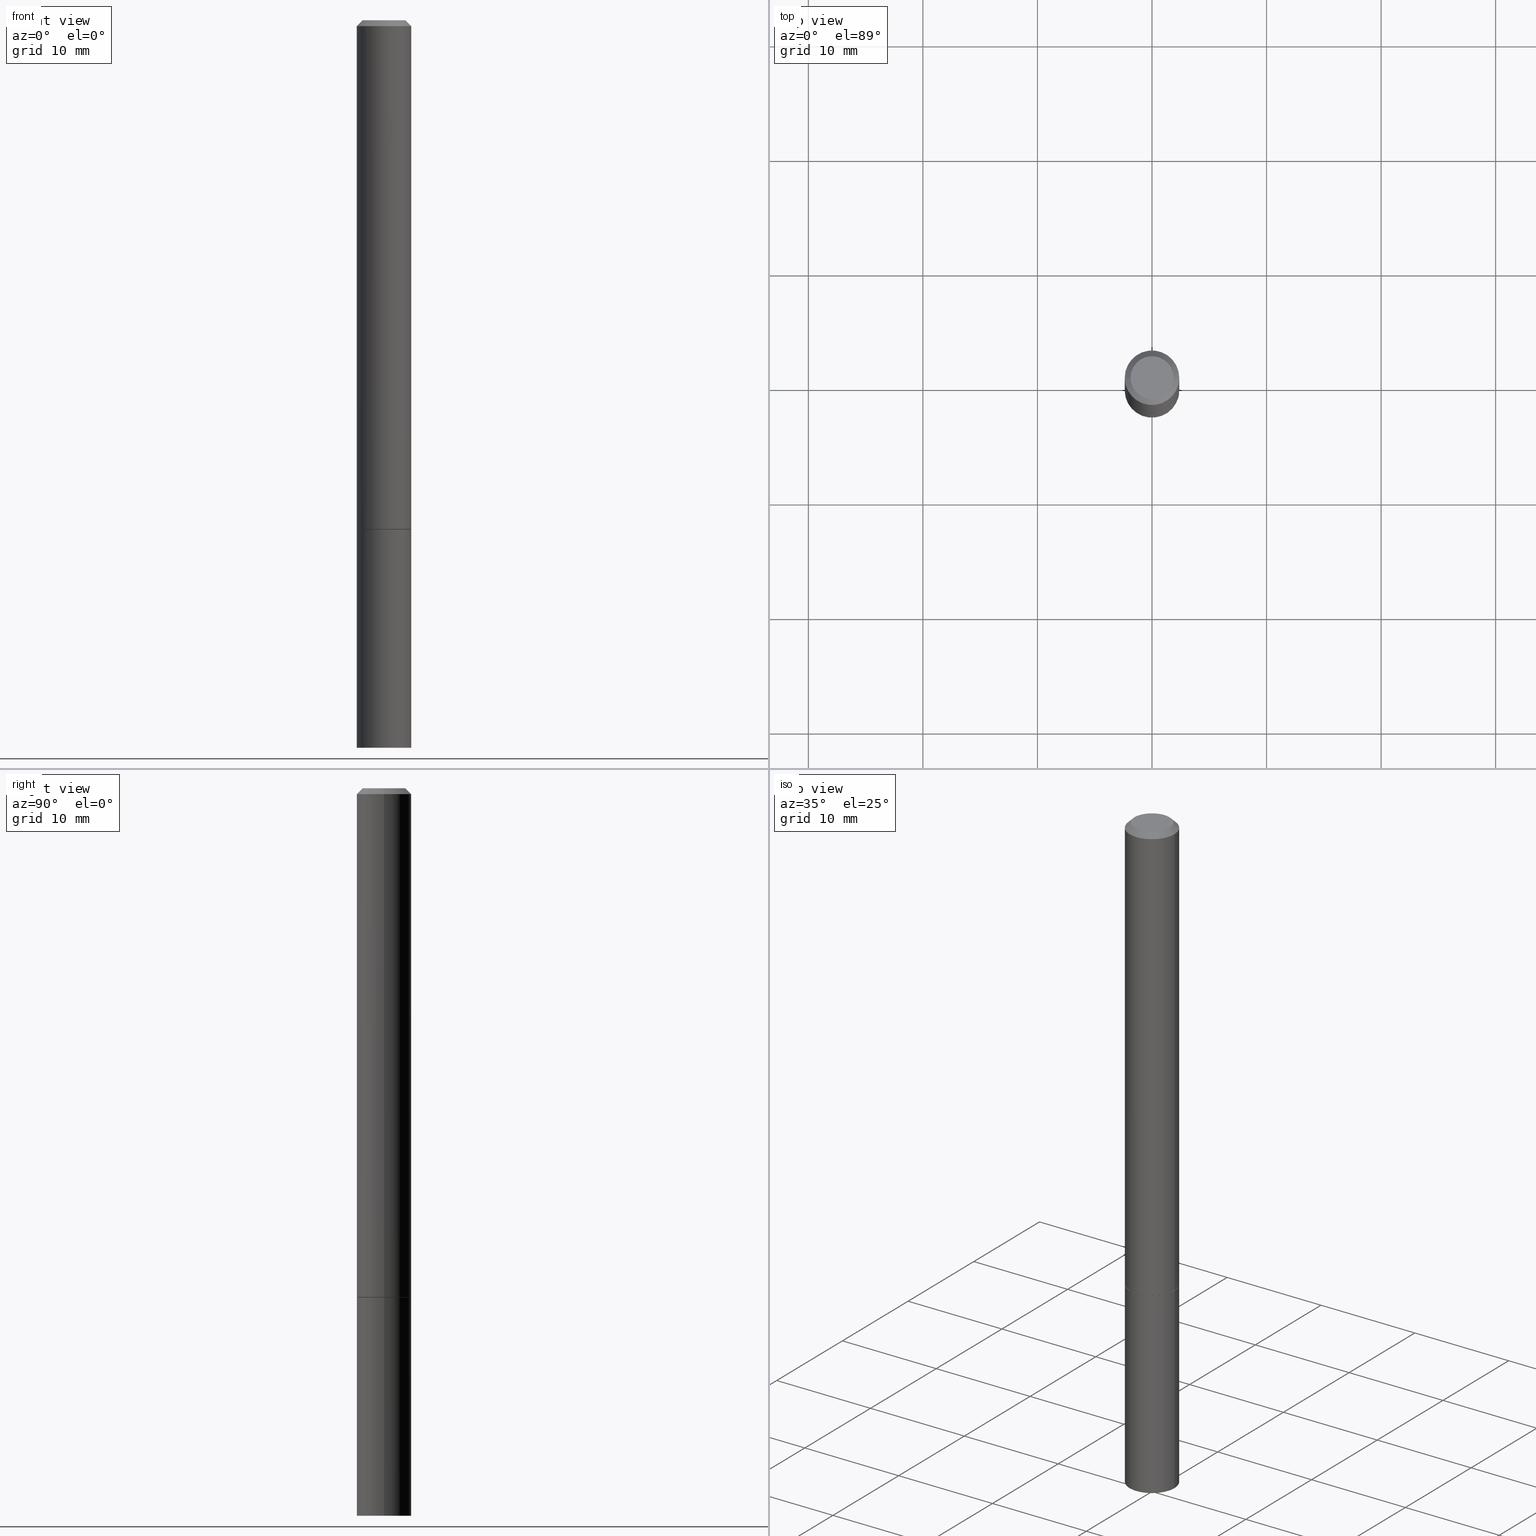
[diagram: canonical four-view strip — front | top / right | iso, engineering-drawing reading convention]
A machine part, canonical four-view strip (front | top / right | iso — engineering-drawing reading convention). The complete STEP part file that produces these views, byte-faithful:
ISO-10303-21;
HEADER;
FILE_DESCRIPTION (( 'STEP AP203' ),
    '1' );
FILE_NAME ('93325.STEP',
    '2024-03-01T05:21:11',
    ( '' ),
    ( '' ),
    'SwSTEP 2.0',
    'SolidWorks 2023',
    '' );
FILE_SCHEMA (( 'CONFIG_CONTROL_DESIGN' ));
ENDSEC;

DATA;
#1 = PERSON_AND_ORGANIZATION ( #239, #79 ) ;
#2 = DIRECTION ( 'NONE',  ( 1.000000000000000000, -6.982962677686266711E-15, 0.000000000000000000 ) ) ;
#3 = CARTESIAN_POINT ( 'NONE',  ( 0.09274999999999999911, -6.757762131330906950E-15, -1.750000000000000222 ) ) ;
#4 = EDGE_LOOP ( 'NONE', ( #261, #146 ) ) ;
#5 = CARTESIAN_POINT ( 'NONE',  ( 0.09374999999999979183, -7.130013140679426072E-16, -0.02000000000000002470 ) ) ;
#6 = PERSON_AND_ORGANIZATION_ROLE ( 'classification_officer' ) ;
#7 = CONICAL_SURFACE ( 'NONE', #48, 0.09374999999999979183, 0.7853981633974466137 ) ;
#8 = ADVANCED_FACE ( 'NONE', ( #86 ), #178, .T. ) ;
#9 = EDGE_LOOP ( 'NONE', ( #115, #60, #59, #255 ) ) ;
#10 = EDGE_LOOP ( 'NONE', ( #117, #42, #114, #340 ) ) ;
#11 = DIRECTION ( 'NONE',  ( -2.445468806185136597E-29, 3.491481338843145583E-15, 1.000000000000000000 ) ) ;
#12 = EDGE_LOOP ( 'NONE', ( #212, #142 ) ) ;
#13 = CARTESIAN_POINT ( 'NONE',  ( -0.09375000000000001388, -6.753264030266591277E-15, -2.500000000000000000 ) ) ;
#14 = CARTESIAN_POINT ( 'NONE',  ( 4.890937612370279289E-31, -6.982962677686299005E-17, -0.02000000000000002470 ) ) ;
#15 = CARTESIAN_POINT ( 'NONE',  ( 0.09374999999999979183, -7.130013140679426072E-16, -0.02000000000000002470 ) ) ;
#16 = EDGE_CURVE ( 'NONE', #162, #344, #65, .T. ) ;
#17 = COORDINATED_UNIVERSAL_TIME_OFFSET ( 5, 0, .BEHIND. ) ;
#18 = APPROVAL_STATUS ( 'not_yet_approved' ) ;
#19 = DIRECTION ( 'NONE',  ( -2.445468806185136877E-29, 3.491481338843145188E-15, 1.000000000000000000 ) ) ;
#20 = PLANE ( 'NONE',  #193 ) ;
#21 = DIRECTION ( 'NONE',  ( 0.7071067811865232589, -2.468850131082003836E-15, 0.7071067811865715536 ) ) ;
#22 = CC_DESIGN_PERSON_AND_ORGANIZATION_ASSIGNMENT ( #1, #104, ( #234 ) ) ;
#23 = ORIENTED_EDGE ( 'NONE', *, *, #307, .T. ) ;
#24 = DATE_AND_TIME ( #259, #136 ) ;
#25 = CYLINDRICAL_SURFACE ( 'NONE', #325, 0.09374999999999988898 ) ;
#26 = ORIENTED_EDGE ( 'NONE', *, *, #179, .F. ) ;
#27 = CIRCLE ( 'NONE', #331, 0.09375000000000001388 ) ;
#28 = PERSON_AND_ORGANIZATION_ROLE ( 'creator' ) ;
#29 = ORIENTED_EDGE ( 'NONE', *, *, #33, .F. ) ;
#30 = VERTEX_POINT ( 'NONE', #180 ) ;
#31 = AXIS2_PLACEMENT_3D ( 'NONE', #288, #147, #181 ) ;
#32 = CARTESIAN_POINT ( 'NONE',  ( 4.279570410823989044E-29, -6.110092342975505460E-15, -1.750000000000000222 ) ) ;
#33 = EDGE_CURVE ( 'NONE', #162, #96, #330, .T. ) ;
#34 = CARTESIAN_POINT ( 'NONE',  ( 0.09374999999999988898, -6.546527510330866166E-16, 4.571415727308684201E-30 ) ) ;
#35 = ORIENTED_EDGE ( 'NONE', *, *, #40, .F. ) ;
#36 = DIRECTION ( 'NONE',  ( 1.000000000000000000, -6.982962677686261189E-15, 0.000000000000000000 ) ) ;
#37 = VECTOR ( 'NONE', #360, 39.37007874015748854 ) ;
#38 = LOCAL_TIME ( 0, 21, 11.00000000000000000, #138 ) ;
#39 = DIRECTION ( 'NONE',  ( 1.000000000000000000, -6.982962677686273021E-15, 0.000000000000000000 ) ) ;
#40 = EDGE_CURVE ( 'NONE', #287, #252, #196, .T. ) ;
#41 = AXIS2_PLACEMENT_3D ( 'NONE', #164, #223, #277 ) ;
#42 = ORIENTED_EDGE ( 'NONE', *, *, #70, .F. ) ;
#43 = CARTESIAN_POINT ( 'NONE',  ( 5.149934974793609077E-16, 0.07374999999999982958, -2.574967487396813906E-16 ) ) ;
#44 = DATE_AND_TIME ( #351, #38 ) ;
#45 = FACE_OUTER_BOUND ( 'NONE', #121, .T. ) ;
#46 = DIRECTION ( 'NONE',  ( -2.445468806185136597E-29, 3.491481338843145583E-15, 1.000000000000000000 ) ) ;
#47 = EDGE_LOOP ( 'NONE', ( #244, #229 ) ) ;
#48 = AXIS2_PLACEMENT_3D ( 'NONE', #14, #272, #355 ) ;
#49 = CARTESIAN_POINT ( 'NONE',  ( 4.279570410823989044E-29, -6.110092342975505460E-15, -1.750000000000000222 ) ) ;
#50 = ORIENTED_EDGE ( 'NONE', *, *, #289, .T. ) ;
#51 = DIRECTION ( 'NONE',  ( -2.445468806185136597E-29, 3.491481338843145583E-15, 1.000000000000000000 ) ) ;
#52 = MECHANICAL_CONTEXT ( 'NONE', #92, 'mechanical' ) ;
#53 = FACE_OUTER_BOUND ( 'NONE', #148, .T. ) ;
#54 = AXIS2_PLACEMENT_3D ( 'NONE', #75, #51, #2 ) ;
#55 = LOCAL_TIME ( 0, 21, 11.00000000000000000, #195 ) ;
#56 = CC_DESIGN_PERSON_AND_ORGANIZATION_ASSIGNMENT ( #281, #28, ( #345 ) ) ;
#57 = COORDINATED_UNIVERSAL_TIME_OFFSET ( 5, 0, .BEHIND. ) ;
#58 = DIRECTION ( 'NONE',  ( 2.445468806185136597E-29, -3.491481338843145583E-15, -1.000000000000000000 ) ) ;
#59 = ORIENTED_EDGE ( 'NONE', *, *, #314, .F. ) ;
#60 = ORIENTED_EDGE ( 'NONE', *, *, #204, .T. ) ;
#61 = CARTESIAN_POINT ( 'NONE',  ( 4.279570410823989044E-29, -6.110092342975505460E-15, -1.750000000000000222 ) ) ;
#62 = APPROVAL ( #198, 'UNSPECIFIED' ) ;
#63 = AXIS2_PLACEMENT_3D ( 'NONE', #176, #173, #257 ) ;
#64 = ORIENTED_EDGE ( 'NONE', *, *, #260, .F. ) ;
#65 = LINE ( 'NONE', #5, #105 ) ;
#66 = CARTESIAN_POINT ( 'NONE',  ( 0.09274999999999999911, -6.757762131330906950E-15, -1.750000000000000222 ) ) ;
#67 = CARTESIAN_POINT ( 'NONE',  ( 4.890937612370279289E-31, -6.982962677686299005E-17, -0.02000000000000002470 ) ) ;
#68 = AXIS2_PLACEMENT_3D ( 'NONE', #177, #264, #258 ) ;
#69 = DIRECTION ( 'NONE',  ( 1.000000000000000000, -6.982962677686261189E-15, 0.000000000000000000 ) ) ;
#70 = EDGE_CURVE ( 'NONE', #96, #162, #134, .T. ) ;
#71 = FACE_OUTER_BOUND ( 'NONE', #207, .T. ) ;
#72 = CARTESIAN_POINT ( 'NONE',  ( -0.09274999999999999911, -5.451063955558012544E-15, -1.750000000000000222 ) ) ;
#73 = AXIS2_PLACEMENT_3D ( 'NONE', #341, #309, #169 ) ;
#74 = CIRCLE ( 'NONE', #338, 0.09375000000000001388 ) ;
#75 = CARTESIAN_POINT ( 'NONE',  ( 4.890937612370279289E-31, -6.982962677686299005E-17, -0.02000000000000002470 ) ) ;
#76 = DIRECTION ( 'NONE',  ( -2.445468806185136597E-29, 3.491481338843145583E-15, 1.000000000000000000 ) ) ;
#77 = ORIENTED_EDGE ( 'NONE', *, *, #307, .F. ) ;
#78 = DIRECTION ( 'NONE',  ( -1.000000000000000000, 6.982962677686265922E-15, -4.876176775795935793E-29 ) ) ;
#79 = ORGANIZATION ( 'UNSPECIFIED', 'UNSPECIFIED', '' ) ;
#80 = COORDINATED_UNIVERSAL_TIME_OFFSET ( 5, 0, .BEHIND. ) ;
#81 = DATE_AND_TIME ( #137, #55 ) ;
#82 = PERSON_AND_ORGANIZATION ( #239, #79 ) ;
#83 = CARTESIAN_POINT ( 'NONE',  ( -0.09375000000000001388, -2.422081429431664218E-15, -1.749000000000000110 ) ) ;
#84 = EDGE_LOOP ( 'NONE', ( #300, #23, #232, #205 ) ) ;
#85 = ADVANCED_FACE ( 'NONE', ( #268 ), #98, .F. ) ;
#86 = FACE_OUTER_BOUND ( 'NONE', #199, .T. ) ;
#87 = LOCAL_TIME ( 0, 21, 11.00000000000000000, #57 ) ;
#88 = ORIENTED_EDGE ( 'NONE', *, *, #246, .F. ) ;
#89 = MANIFOLD_SOLID_BREP ( 'Body-Move/Copy2[2]', #270 ) ;
#90 = VERTEX_POINT ( 'NONE', #66 ) ;
#91 = DIRECTION ( 'NONE',  ( -2.445468806185136597E-29, 3.491481338843145583E-15, 1.000000000000000000 ) ) ;
#92 = APPLICATION_CONTEXT ( 'configuration controlled 3d designs of mechanical parts and assemblies' ) ;
#93 = AXIS2_PLACEMENT_3D ( 'NONE', #349, #352, #140 ) ;
#94 = AXIS2_PLACEMENT_3D ( 'NONE', #157, #364, #39 ) ;
#95 = CARTESIAN_POINT ( 'NONE',  ( 0.000000000000000000, 0.000000000000000000, 0.000000000000000000 ) ) ;
#96 = VERTEX_POINT ( 'NONE', #296 ) ;
#97 = ADVANCED_FACE ( 'NONE', ( #71 ), #7, .T. ) ;
#98 = PLANE ( 'NONE',  #99 ) ;
#99 = AXIS2_PLACEMENT_3D ( 'NONE', #43, #216, #156 ) ;
#100 = CONICAL_SURFACE ( 'NONE', #357, 0.09374999999999979183, 0.7853981633974466137 ) ;
#101 = VERTEX_POINT ( 'NONE', #237 ) ;
#102 = DIRECTION ( 'NONE',  ( 1.000000000000000000, -6.982962677686265922E-15, 4.876176775795935793E-29 ) ) ;
#103 = EDGE_CURVE ( 'NONE', #322, #303, #159, .T. ) ;
#104 = PERSON_AND_ORGANIZATION_ROLE ( 'design_supplier' ) ;
#105 = VECTOR ( 'NONE', #112, 39.37007874015748854 ) ;
#106 = AXIS2_PLACEMENT_3D ( 'NONE', #143, #149, #36 ) ;
#107 = APPROVAL_DATE_TIME ( #81, #62 ) ;
#108 = CARTESIAN_POINT ( 'NONE',  ( 4.279570410823989044E-29, -6.110092342975505460E-15, -1.750000000000000222 ) ) ;
#109 = ADVANCED_FACE ( 'NONE', ( #132 ), #313, .T. ) ;
#110 = DIRECTION ( 'NONE',  ( -2.445468806185136597E-29, 3.491481338843145583E-15, 1.000000000000000000 ) ) ;
#111 = CALENDAR_DATE ( 2024, 1, 3 ) ;
#112 = DIRECTION ( 'NONE',  ( 0.7071067811865462405, -7.319954787623251312E-15, -0.7071067811865486830 ) ) ;
#113 = DIRECTION ( 'NONE',  ( -1.000000000000000000, 6.982962677686266711E-15, 0.000000000000000000 ) ) ;
#114 = ORIENTED_EDGE ( 'NONE', *, *, #260, .T. ) ;
#115 = ORIENTED_EDGE ( 'NONE', *, *, #328, .T. ) ;
#116 = DIRECTION ( 'NONE',  ( 1.000000000000000000, -6.982962677686273021E-15, 0.000000000000000000 ) ) ;
#117 = ORIENTED_EDGE ( 'NONE', *, *, #16, .F. ) ;
#118 = DIRECTION ( 'NONE',  ( 1.000000000000000000, -6.982962677686265922E-15, 4.876176775795935793E-29 ) ) ;
#119 = CIRCLE ( 'NONE', #54, 0.09374999999999979183 ) ;
#120 = CONICAL_SURFACE ( 'NONE', #31, 0.09274999999999999911, 0.7853981633974141952 ) ;
#121 = EDGE_LOOP ( 'NONE', ( #35, #192, #174, #77 ) ) ;
#122 = FACE_OUTER_BOUND ( 'NONE', #131, .T. ) ;
#123 = LINE ( 'NONE', #275, #283 ) ;
#124 = CC_DESIGN_PERSON_AND_ORGANIZATION_ASSIGNMENT ( #358, #172, ( #221 ) ) ;
#125 = APPROVAL_PERSON_ORGANIZATION ( #186, #152, #301 ) ;
#126 = CC_DESIGN_DATE_AND_TIME_ASSIGNMENT ( #141, #220, ( #299 ) ) ;
#127 = DATE_AND_TIME ( #334, #250 ) ;
#128 = PERSON_AND_ORGANIZATION ( #239, #79 ) ;
#129 = DIRECTION ( 'NONE',  ( -2.438088387897960049E-29, 3.491481338843145188E-15, 1.000000000000000000 ) ) ;
#130 = AXIS2_PLACEMENT_3D ( 'NONE', #306, #273, #78 ) ;
#131 = EDGE_LOOP ( 'NONE', ( #154, #235, #170, #188 ) ) ;
#132 = FACE_OUTER_BOUND ( 'NONE', #9, .T. ) ;
#133 = PLANE ( 'NONE',  #130 ) ;
#134 = CIRCLE ( 'NONE', #214, 0.07374999999999982958 ) ;
#135 = ADVANCED_FACE ( 'NONE', ( #311 ), #187, .F. ) ;
#136 = LOCAL_TIME ( 0, 21, 11.00000000000000000, #80 ) ;
#137 = CALENDAR_DATE ( 2024, 1, 3 ) ;
#138 = COORDINATED_UNIVERSAL_TIME_OFFSET ( 5, 0, .BEHIND. ) ;
#139 = DIRECTION ( 'NONE',  ( 1.000000000000000000, -6.982962677686261189E-15, 0.000000000000000000 ) ) ;
#140 = DIRECTION ( 'NONE',  ( 1.000000000000000000, -6.982962677686265922E-15, 4.876176775795935793E-29 ) ) ;
#141 = DATE_AND_TIME ( #111, #87 ) ;
#142 = ORIENTED_EDGE ( 'NONE', *, *, #298, .F. ) ;
#143 = CARTESIAN_POINT ( 'NONE',  ( 4.277124942017804562E-29, -6.106600861636661664E-15, -1.749000000000000110 ) ) ;
#144 = CIRCLE ( 'NONE', #215, 0.09274999999999999911 ) ;
#145 = APPROVAL_ROLE ( '' ) ;
#146 = ORIENTED_EDGE ( 'NONE', *, *, #179, .T. ) ;
#147 = DIRECTION ( 'NONE',  ( -2.445468806185136597E-29, 3.491481338843145583E-15, 1.000000000000000000 ) ) ;
#148 = EDGE_LOOP ( 'NONE', ( #88, #293 ) ) ;
#149 = DIRECTION ( 'NONE',  ( -2.445468806185136597E-29, 3.491481338843145583E-15, 1.000000000000000000 ) ) ;
#150 = APPROVAL_PERSON_ORGANIZATION ( #228, #190, #145 ) ;
#151 = DIRECTION ( 'NONE',  ( 1.000000000000000000, -6.982962677686266711E-15, 4.876176775795935793E-29 ) ) ;
#152 = APPROVAL ( #18, 'UNSPECIFIED' ) ;
#153 = AXIS2_PLACEMENT_3D ( 'NONE', #202, #11, #200 ) ;
#154 = ORIENTED_EDGE ( 'NONE', *, *, #246, .T. ) ;
#155 = DATE_TIME_ROLE ( 'creation_date' ) ;
#156 = DIRECTION ( 'NONE',  ( -1.000000000000000000, 6.982962677686265922E-15, -4.876176775795935793E-29 ) ) ;
#157 = CARTESIAN_POINT ( 'NONE',  ( 4.279570410823989044E-29, -6.110092342975505460E-15, -1.750000000000000222 ) ) ;
#158 = EDGE_CURVE ( 'NONE', #101, #344, #119, .T. ) ;
#159 = LINE ( 'NONE', #249, #348 ) ;
#160 = CIRCLE ( 'NONE', #106, 0.09375000000000001388 ) ;
#161 = DESIGN_CONTEXT ( 'detailed design', #251, 'design' ) ;
#162 = VERTEX_POINT ( 'NONE', #217 ) ;
#163 = ADVANCED_BREP_SHAPE_REPRESENTATION ( '93325', ( #335, #89, #41 ), #333 ) ;
#164 = CARTESIAN_POINT ( 'NONE',  ( 0.000000000000000000, 0.000000000000000000, 0.000000000000000000 ) ) ;
#165 = PRODUCT_DEFINITION_SHAPE ( 'NONE', 'NONE',  #345 ) ;
#166 = CARTESIAN_POINT ( 'NONE',  ( 4.279570410823989044E-29, -6.110092342975505460E-15, -1.750000000000000222 ) ) ;
#167 = EDGE_CURVE ( 'NONE', #90, #30, #282, .T. ) ;
#168 = APPROVAL_DATE_TIME ( #24, #190 ) ;
#169 = DIRECTION ( 'NONE',  ( -1.000000000000000000, 6.982962677686265922E-15, -4.876176775795935793E-29 ) ) ;
#170 = ORIENTED_EDGE ( 'NONE', *, *, #197, .F. ) ;
#171 = VECTOR ( 'NONE', #236, 39.37007874015748143 ) ;
#172 = PERSON_AND_ORGANIZATION_ROLE ( 'design_owner' ) ;
#173 = DIRECTION ( 'NONE',  ( -2.445468806185136597E-29, 3.491481338843145583E-15, 1.000000000000000000 ) ) ;
#174 = ORIENTED_EDGE ( 'NONE', *, *, #167, .T. ) ;
#175 = ADVANCED_FACE ( 'NONE', ( #245 ), #20, .F. ) ;
#176 = CARTESIAN_POINT ( 'NONE',  ( 6.113672015462842613E-29, -8.728703347107864943E-15, -2.500000000000000000 ) ) ;
#177 = CARTESIAN_POINT ( 'NONE',  ( 4.890937612370279289E-31, -6.982962677686299005E-17, -0.02000000000000002470 ) ) ;
#178 = CYLINDRICAL_SURFACE ( 'NONE', #93, 0.09375000000000001388 ) ;
#179 = EDGE_CURVE ( 'NONE', #303, #231, #361, .T. ) ;
#180 = CARTESIAN_POINT ( 'NONE',  ( 0.09375000000000001388, -6.761253612669749168E-15, -1.749000000000000110 ) ) ;
#181 = DIRECTION ( 'NONE',  ( 1.000000000000000000, -6.982962677686273021E-15, 0.000000000000000000 ) ) ;
#182 =( CONVERSION_BASED_UNIT ( 'INCH', #292 ) LENGTH_UNIT ( ) NAMED_UNIT ( #321 ) );
#183 = AXIS2_PLACEMENT_3D ( 'NONE', #323, #91, #118 ) ;
#184 = APPROVAL_PERSON_ORGANIZATION ( #315, #62, #320 ) ;
#185 = ADVANCED_FACE ( 'NONE', ( #53 ), #133, .T. ) ;
#186 = PERSON_AND_ORGANIZATION ( #239, #79 ) ;
#187 = PLANE ( 'NONE',  #73 ) ;
#188 = ORIENTED_EDGE ( 'NONE', *, *, #254, .F. ) ;
#189 = CARTESIAN_POINT ( 'NONE',  ( 0.000000000000000000, 0.000000000000000000, 0.000000000000000000 ) ) ;
#190 = APPROVAL ( #278, 'UNSPECIFIED' ) ;
#191 = DIRECTION ( 'NONE',  ( -2.445468806185136877E-29, 3.491481338843145188E-15, 1.000000000000000000 ) ) ;
#192 = ORIENTED_EDGE ( 'NONE', *, *, #298, .T. ) ;
#193 = AXIS2_PLACEMENT_3D ( 'NONE', #49, #129, #102 ) ;
#194 = AXIS2_PLACEMENT_3D ( 'NONE', #108, #218, #336 ) ;
#195 = COORDINATED_UNIVERSAL_TIME_OFFSET ( 5, 0, .BEHIND. ) ;
#196 = LINE ( 'NONE', #72, #37 ) ;
#197 = EDGE_CURVE ( 'NONE', #231, #303, #27, .T. ) ;
#198 = APPROVAL_STATUS ( 'not_yet_approved' ) ;
#199 = EDGE_LOOP ( 'NONE', ( #365, #50, #324, #26 ) ) ;
#200 = DIRECTION ( 'NONE',  ( 1.000000000000000000, -6.982962677686272233E-15, 0.000000000000000000 ) ) ;
#201 = ORIENTED_EDGE ( 'NONE', *, *, #363, .T. ) ;
#202 = CARTESIAN_POINT ( 'NONE',  ( 6.113672015462842613E-29, -8.728703347107864943E-15, -2.500000000000000000 ) ) ;
#203 = CONICAL_SURFACE ( 'NONE', #94, 0.09274999999999999911, 0.7853981633974141952 ) ;
#204 = EDGE_CURVE ( 'NONE', #252, #101, #247, .T. ) ;
#205 = ORIENTED_EDGE ( 'NONE', *, *, #158, .F. ) ;
#206 = DIRECTION ( 'NONE',  ( -2.445468806185136597E-29, 3.491481338843145583E-15, 1.000000000000000000 ) ) ;
#207 = EDGE_LOOP ( 'NONE', ( #29, #326, #347, #64 ) ) ;
#208 = DIRECTION ( 'NONE',  ( -2.445468806185136597E-29, 3.491481338843145583E-15, 1.000000000000000000 ) ) ;
#209 = CYLINDRICAL_SURFACE ( 'NONE', #183, 0.09375000000000001388 ) ;
#210 = AXIS2_PLACEMENT_3D ( 'NONE', #32, #230, #116 ) ;
#211 = DIRECTION ( 'NONE',  ( -2.445468806185136597E-29, 3.491481338843145583E-15, 1.000000000000000000 ) ) ;
#212 = ORIENTED_EDGE ( 'NONE', *, *, #363, .F. ) ;
#213 = DIRECTION ( 'NONE',  ( -2.445468806185136877E-29, 3.491481338843145188E-15, 1.000000000000000000 ) ) ;
#214 = AXIS2_PLACEMENT_3D ( 'NONE', #95, #211, #151 ) ;
#215 = AXIS2_PLACEMENT_3D ( 'NONE', #61, #208, #350 ) ;
#216 = DIRECTION ( 'NONE',  ( 2.438088387897960049E-29, -3.491481338843145188E-15, -1.000000000000000000 ) ) ;
#217 = CARTESIAN_POINT ( 'NONE',  ( 0.07374999999999982958, -6.094815207017959226E-16, 3.931526600461596647E-30 ) ) ;
#218 = DIRECTION ( 'NONE',  ( -2.445468806185136597E-29, 3.491481338843145583E-15, 1.000000000000000000 ) ) ;
#219 = ADVANCED_FACE ( 'NONE', ( #253 ), #25, .T. ) ;
#220 = DATE_TIME_ROLE ( 'classification_date' ) ;
#221 = PRODUCT ( '93325', '93325', '', ( #52 ) ) ;
#222 = CARTESIAN_POINT ( 'NONE',  ( 0.000000000000000000, 0.000000000000000000, 0.000000000000000000 ) ) ;
#223 = DIRECTION ( 'NONE',  ( 0.000000000000000000, 0.000000000000000000, 1.000000000000000000 ) ) ;
#224 = SHAPE_DEFINITION_REPRESENTATION ( #165, #163 ) ;
#225 = CARTESIAN_POINT ( 'NONE',  ( 0.000000000000000000, 0.000000000000000000, 0.000000000000000000 ) ) ;
#226 = CLOSED_SHELL ( 'NONE', ( #267, #185, #135, #8 ) ) ;
#227 = VECTOR ( 'NONE', #346, 39.37007874015748854 ) ;
#228 = PERSON_AND_ORGANIZATION ( #239, #79 ) ;
#229 = ORIENTED_EDGE ( 'NONE', *, *, #33, .T. ) ;
#230 = DIRECTION ( 'NONE',  ( -2.445468806185136597E-29, 3.491481338843145583E-15, 1.000000000000000000 ) ) ;
#231 = VERTEX_POINT ( 'NONE', #304 ) ;
#232 = ORIENTED_EDGE ( 'NONE', *, *, #356, .T. ) ;
#233 = CARTESIAN_POINT ( 'NONE',  ( -0.09274999999999999911, -5.445765501209790142E-15, -1.750000000000000222 ) ) ;
#234 = PRODUCT_DEFINITION_FORMATION_WITH_SPECIFIED_SOURCE ( 'ANY', '', #221, .NOT_KNOWN. ) ;
#235 = ORIENTED_EDGE ( 'NONE', *, *, #103, .T. ) ;
#236 = DIRECTION ( 'NONE',  ( -2.445468806185136877E-29, 3.491481338843145188E-15, 1.000000000000000000 ) ) ;
#237 = CARTESIAN_POINT ( 'NONE',  ( -0.09374999999999979183, 5.848231242562231212E-16, -0.02000000000000002470 ) ) ;
#238 = ADVANCED_FACE ( 'NONE', ( #45 ), #203, .T. ) ;
#239 = PERSON ( 'UNSPECIFIED', 'UNSPECIFIED', 'UNSPECIFIED', ('UNSPECIFIED'), ('UNSPECIFIED'), ('UNSPECIFIED') ) ;
#240 = CIRCLE ( 'NONE', #63, 0.09375000000000001388 ) ;
#241 = ADVANCED_FACE ( 'NONE', ( #269 ), #100, .T. ) ;
#242 = APPROVAL_DATE_TIME ( #127, #152 ) ;
#243 = DIRECTION ( 'NONE',  ( 1.000000000000000000, -6.982962677686265133E-15, 4.876176775795935793E-29 ) ) ;
#244 = ORIENTED_EDGE ( 'NONE', *, *, #70, .T. ) ;
#245 = FACE_OUTER_BOUND ( 'NONE', #12, .T. ) ;
#246 = EDGE_CURVE ( 'NONE', #290, #322, #240, .T. ) ;
#247 = LINE ( 'NONE', #279, #342 ) ;
#248 = APPLICATION_PROTOCOL_DEFINITION ( 'international standard', 'config_control_design', 1994, #92 ) ;
#249 = CARTESIAN_POINT ( 'NONE',  ( -0.09375000000000001388, 6.661338147750940229E-16, -4.611501647113973995E-30 ) ) ;
#250 = LOCAL_TIME ( 0, 21, 11.00000000000000000, #17 ) ;
#251 = APPLICATION_CONTEXT ( 'configuration controlled 3d designs of mechanical parts and assemblies' ) ;
#252 = VERTEX_POINT ( 'NONE', #83 ) ;
#253 = FACE_OUTER_BOUND ( 'NONE', #84, .T. ) ;
#254 = EDGE_CURVE ( 'NONE', #290, #231, #123, .T. ) ;
#255 = ORIENTED_EDGE ( 'NONE', *, *, #356, .F. ) ;
#256 = SECURITY_CLASSIFICATION_LEVEL ( 'unclassified' ) ;
#257 = DIRECTION ( 'NONE',  ( 1.000000000000000000, -6.982962677686272233E-15, 0.000000000000000000 ) ) ;
#258 = DIRECTION ( 'NONE',  ( 1.000000000000000000, -6.982962677686266711E-15, 0.000000000000000000 ) ) ;
#259 = CALENDAR_DATE ( 2024, 1, 3 ) ;
#260 = EDGE_CURVE ( 'NONE', #96, #101, #337, .T. ) ;
#261 = ORIENTED_EDGE ( 'NONE', *, *, #197, .T. ) ;
#262 = ORIENTED_EDGE ( 'NONE', *, *, #40, .T. ) ;
#263 = CARTESIAN_POINT ( 'NONE',  ( -0.09375000000000001388, -6.753264030266591277E-15, -1.750000000000000222 ) ) ;
#264 = DIRECTION ( 'NONE',  ( -2.445468806185136597E-29, 3.491481338843145583E-15, 1.000000000000000000 ) ) ;
#265 = CC_DESIGN_APPROVAL ( #62, ( #299 ) ) ;
#266 =( NAMED_UNIT ( * ) SI_UNIT ( $, .STERADIAN. ) SOLID_ANGLE_UNIT ( ) );
#267 = ADVANCED_FACE ( 'NONE', ( #122 ), #209, .T. ) ;
#268 = FACE_OUTER_BOUND ( 'NONE', #47, .T. ) ;
#269 = FACE_OUTER_BOUND ( 'NONE', #10, .T. ) ;
#270 = CLOSED_SHELL ( 'NONE', ( #332, #109, #97, #241, #219, #238, #175, #85 ) ) ;
#271 = CIRCLE ( 'NONE', #68, 0.09374999999999979183 ) ;
#272 = DIRECTION ( 'NONE',  ( 2.445468806185136597E-29, -3.491481338843145583E-15, -1.000000000000000000 ) ) ;
#273 = DIRECTION ( 'NONE',  ( 2.438088387897960049E-29, -3.491481338843145188E-15, -1.000000000000000000 ) ) ;
#274 = CIRCLE ( 'NONE', #210, 0.09274999999999999911 ) ;
#275 = CARTESIAN_POINT ( 'NONE',  ( 0.09375000000000001388, -6.546527510330875041E-16, 4.571415727308690506E-30 ) ) ;
#276 = CC_DESIGN_DATE_AND_TIME_ASSIGNMENT ( #44, #155, ( #345 ) ) ;
#277 = DIRECTION ( 'NONE',  ( 1.000000000000000000, 0.000000000000000000, 0.000000000000000000 ) ) ;
#278 = APPROVAL_STATUS ( 'not_yet_approved' ) ;
#279 = CARTESIAN_POINT ( 'NONE',  ( -0.09374999999999988898, 6.661338147750931354E-16, -4.611501647113968390E-30 ) ) ;
#280 = AXIS2_PLACEMENT_3D ( 'NONE', #222, #76, #339 ) ;
#281 = PERSON_AND_ORGANIZATION ( #239, #79 ) ;
#282 = LINE ( 'NONE', #3, #316 ) ;
#283 = VECTOR ( 'NONE', #213, 39.37007874015748143 ) ;
#284 = UNCERTAINTY_MEASURE_WITH_UNIT (LENGTH_MEASURE( 1.000000000000000082E-05 ), #182, 'distance_accuracy_value', 'NONE');
#285 = EDGE_LOOP ( 'NONE', ( #201, #262, #359, #318 ) ) ;
#286 = CC_DESIGN_PERSON_AND_ORGANIZATION_ASSIGNMENT ( #82, #6, ( #299 ) ) ;
#287 = VERTEX_POINT ( 'NONE', #233 ) ;
#288 = CARTESIAN_POINT ( 'NONE',  ( 4.279570410823989044E-29, -6.110092342975505460E-15, -1.750000000000000222 ) ) ;
#289 = EDGE_CURVE ( 'NONE', #322, #290, #308, .T. ) ;
#290 = VERTEX_POINT ( 'NONE', #353 ) ;
#291 = CC_DESIGN_APPROVAL ( #190, ( #345 ) ) ;
#292 = LENGTH_MEASURE_WITH_UNIT ( LENGTH_MEASURE( 0.02539999999999999897 ), #329 );
#293 = ORIENTED_EDGE ( 'NONE', *, *, #289, .F. ) ;
#294 = LINE ( 'NONE', #34, #171 ) ;
#295 = DIRECTION ( 'NONE',  ( -2.445468806185136597E-29, 3.491481338843145583E-15, 1.000000000000000000 ) ) ;
#296 = CARTESIAN_POINT ( 'NONE',  ( -0.07374999999999982958, 5.499083108677920638E-16, -3.723527850031185562E-30 ) ) ;
#297 =( NAMED_UNIT ( * ) PLANE_ANGLE_UNIT ( ) SI_UNIT ( $, .RADIAN. ) );
#298 = EDGE_CURVE ( 'NONE', #287, #90, #144, .T. ) ;
#299 = SECURITY_CLASSIFICATION ( '', '', #256 ) ;
#300 = ORIENTED_EDGE ( 'NONE', *, *, #204, .F. ) ;
#301 = APPROVAL_ROLE ( '' ) ;
#302 = AXIS2_PLACEMENT_3D ( 'NONE', #225, #295, #343 ) ;
#303 = VERTEX_POINT ( 'NONE', #263 ) ;
#304 = CARTESIAN_POINT ( 'NONE',  ( 0.09375000000000001388, -6.764745094008592175E-15, -1.750000000000000222 ) ) ;
#305 = PERSON_AND_ORGANIZATION_ROLE ( 'creator' ) ;
#306 = CARTESIAN_POINT ( 'NONE',  ( 6.546527510331486408E-16, 0.09374999999999128475, -2.500000000000000444 ) ) ;
#307 = EDGE_CURVE ( 'NONE', #252, #30, #160, .T. ) ;
#308 = CIRCLE ( 'NONE', #153, 0.09375000000000001388 ) ;
#309 = DIRECTION ( 'NONE',  ( 2.438088387897960049E-29, -3.491481338843145188E-15, -1.000000000000000000 ) ) ;
#310 = CARTESIAN_POINT ( 'NONE',  ( -0.09374999999999979183, 5.848231242562231212E-16, -0.02000000000000002470 ) ) ;
#311 = FACE_OUTER_BOUND ( 'NONE', #4, .T. ) ;
#312 = APPLICATION_PROTOCOL_DEFINITION ( 'international standard', 'config_control_design', 1994, #251 ) ;
#313 = CYLINDRICAL_SURFACE ( 'NONE', #280, 0.09374999999999988898 ) ;
#314 = EDGE_CURVE ( 'NONE', #344, #101, #271, .T. ) ;
#315 = PERSON_AND_ORGANIZATION ( #239, #79 ) ;
#316 = VECTOR ( 'NONE', #21, 39.37007874015748854 ) ;
#317 = CC_DESIGN_APPROVAL ( #152, ( #234 ) ) ;
#318 = ORIENTED_EDGE ( 'NONE', *, *, #167, .F. ) ;
#319 = CC_DESIGN_PERSON_AND_ORGANIZATION_ASSIGNMENT ( #128, #305, ( #234 ) ) ;
#320 = APPROVAL_ROLE ( '' ) ;
#321 = DIMENSIONAL_EXPONENTS ( 1.000000000000000000, 0.000000000000000000, 0.000000000000000000, 0.000000000000000000, 0.000000000000000000, 0.000000000000000000, 0.000000000000000000 ) ;
#322 = VERTEX_POINT ( 'NONE', #13 ) ;
#323 = CARTESIAN_POINT ( 'NONE',  ( 0.000000000000000000, 0.000000000000000000, 0.000000000000000000 ) ) ;
#324 = ORIENTED_EDGE ( 'NONE', *, *, #254, .T. ) ;
#325 = AXIS2_PLACEMENT_3D ( 'NONE', #189, #110, #243 ) ;
#326 = ORIENTED_EDGE ( 'NONE', *, *, #16, .T. ) ;
#327 = FACE_OUTER_BOUND ( 'NONE', #285, .T. ) ;
#328 = EDGE_CURVE ( 'NONE', #30, #252, #74, .T. ) ;
#329 =( LENGTH_UNIT ( ) NAMED_UNIT ( * ) SI_UNIT ( $, .METRE. ) );
#330 = CIRCLE ( 'NONE', #302, 0.07374999999999982958 ) ;
#331 = AXIS2_PLACEMENT_3D ( 'NONE', #166, #46, #139 ) ;
#332 = ADVANCED_FACE ( 'NONE', ( #327 ), #120, .T. ) ;
#333 =( GEOMETRIC_REPRESENTATION_CONTEXT ( 3 ) GLOBAL_UNCERTAINTY_ASSIGNED_CONTEXT ( ( #284 ) ) GLOBAL_UNIT_ASSIGNED_CONTEXT ( ( #182, #297, #266 ) ) REPRESENTATION_CONTEXT ( 'NONE', 'WORKASPACE' ) );
#334 = CALENDAR_DATE ( 2024, 1, 3 ) ;
#335 = MANIFOLD_SOLID_BREP ( 'Body-Move/Copy2[1]', #226 ) ;
#336 = DIRECTION ( 'NONE',  ( 1.000000000000000000, -6.982962677686261189E-15, 0.000000000000000000 ) ) ;
#337 = LINE ( 'NONE', #310, #227 ) ;
#338 = AXIS2_PLACEMENT_3D ( 'NONE', #354, #206, #69 ) ;
#339 = DIRECTION ( 'NONE',  ( 1.000000000000000000, -6.982962677686265133E-15, 4.876176775795935793E-29 ) ) ;
#340 = ORIENTED_EDGE ( 'NONE', *, *, #158, .T. ) ;
#341 = CARTESIAN_POINT ( 'NONE',  ( 6.546527510331302998E-16, 0.09374999999999389377, -1.750000000000000444 ) ) ;
#342 = VECTOR ( 'NONE', #19, 39.37007874015748143 ) ;
#343 = DIRECTION ( 'NONE',  ( 1.000000000000000000, -6.982962677686266711E-15, 4.876176775795935793E-29 ) ) ;
#344 = VERTEX_POINT ( 'NONE', #15 ) ;
#345 = PRODUCT_DEFINITION ( 'UNKNOWN', '', #234, #161 ) ;
#346 = DIRECTION ( 'NONE',  ( -0.7071067811865462405, 2.468850131082243650E-15, -0.7071067811865486830 ) ) ;
#347 = ORIENTED_EDGE ( 'NONE', *, *, #314, .T. ) ;
#348 = VECTOR ( 'NONE', #191, 39.37007874015748143 ) ;
#349 = CARTESIAN_POINT ( 'NONE',  ( 0.000000000000000000, 0.000000000000000000, 0.000000000000000000 ) ) ;
#350 = DIRECTION ( 'NONE',  ( 1.000000000000000000, -6.982962677686273021E-15, 0.000000000000000000 ) ) ;
#351 = CALENDAR_DATE ( 2024, 1, 3 ) ;
#352 = DIRECTION ( 'NONE',  ( -2.445468806185136597E-29, 3.491481338843145583E-15, 1.000000000000000000 ) ) ;
#353 = CARTESIAN_POINT ( 'NONE',  ( 0.09375000000000001388, -9.383356098140953236E-15, -2.500000000000000000 ) ) ;
#354 = CARTESIAN_POINT ( 'NONE',  ( 4.277124942017804562E-29, -6.106600861636661664E-15, -1.749000000000000110 ) ) ;
#355 = DIRECTION ( 'NONE',  ( -1.000000000000000000, 6.982962677686266711E-15, 0.000000000000000000 ) ) ;
#356 = EDGE_CURVE ( 'NONE', #30, #344, #294, .T. ) ;
#357 = AXIS2_PLACEMENT_3D ( 'NONE', #67, #58, #113 ) ;
#358 = PERSON_AND_ORGANIZATION ( #239, #79 ) ;
#359 = ORIENTED_EDGE ( 'NONE', *, *, #328, .F. ) ;
#360 = DIRECTION ( 'NONE',  ( -0.7071067811865232589, 7.493145998870265808E-15, 0.7071067811865715536 ) ) ;
#361 = CIRCLE ( 'NONE', #194, 0.09375000000000001388 ) ;
#362 = CC_DESIGN_SECURITY_CLASSIFICATION ( #299, ( #234 ) ) ;
#363 = EDGE_CURVE ( 'NONE', #90, #287, #274, .T. ) ;
#364 = DIRECTION ( 'NONE',  ( -2.445468806185136597E-29, 3.491481338843145583E-15, 1.000000000000000000 ) ) ;
#365 = ORIENTED_EDGE ( 'NONE', *, *, #103, .F. ) ;
#366 = PRODUCT_RELATED_PRODUCT_CATEGORY ( 'detail', '', ( #221 ) ) ;
ENDSEC;
END-ISO-10303-21;
